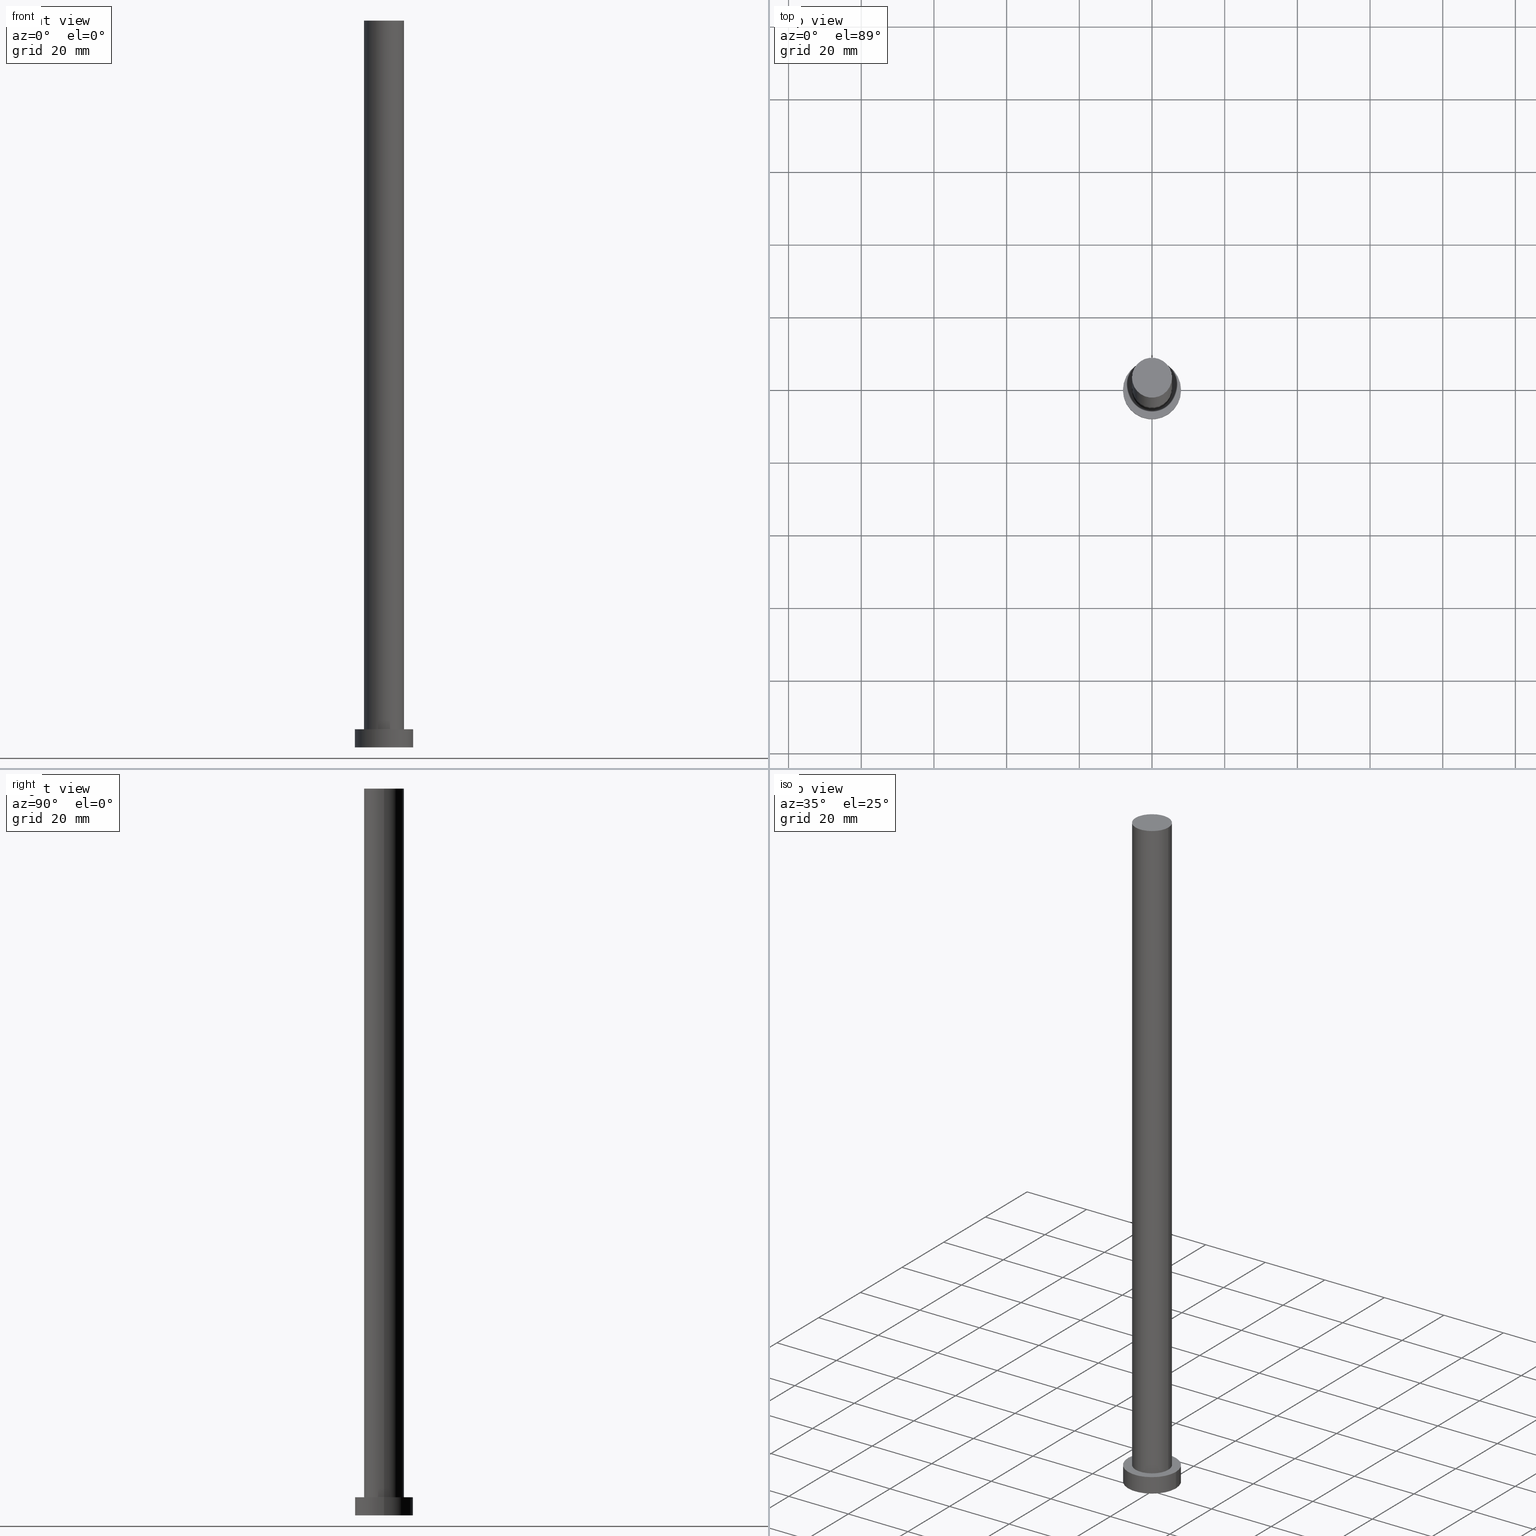
[diagram: canonical four-view strip — front | top / right | iso, engineering-drawing reading convention]
A machine part, canonical four-view strip (front | top / right | iso — engineering-drawing reading convention). The complete STEP part file that produces these views, byte-faithful:
ISO-10303-21;
HEADER;
FILE_DESCRIPTION (( 'STEP AP203' ),
    '1' );
FILE_NAME ('6896.STEP',
    '2023-02-13T11:10:20',
    ( '' ),
    ( '' ),
    'SwSTEP 2.0',
    'SolidWorks 2019',
    '' );
FILE_SCHEMA (( 'CONFIG_CONTROL_DESIGN' ));
ENDSEC;

DATA;
#1 = CARTESIAN_POINT ( 'NONE',  ( -5.500000000000000000, 0.000000000000000000, 200.0000000000000000 ) ) ;
#2 = CARTESIAN_POINT ( 'NONE',  ( -5.500000000000000000, 0.000000000000000000, 200.0000000000000000 ) ) ;
#3 = EDGE_LOOP ( 'NONE', ( #100, #83 ) ) ;
#4 = PERSON_AND_ORGANIZATION ( #145, #84 ) ;
#5 = VERTEX_POINT ( 'NONE', #27 ) ;
#6 = AXIS2_PLACEMENT_3D ( 'NONE', #90, #32, #189 ) ;
#7 = EDGE_LOOP ( 'NONE', ( #25, #179, #118, #79 ) ) ;
#8 = APPROVAL_PERSON_ORGANIZATION ( #180, #195, #45 ) ;
#9 = COORDINATED_UNIVERSAL_TIME_OFFSET ( 1, 0, .AHEAD. ) ;
#10 = DIRECTION ( 'NONE',  ( -0.000000000000000000, -0.000000000000000000, -1.000000000000000000 ) ) ;
#11 = CARTESIAN_POINT ( 'NONE',  ( 0.000000000000000000, 0.000000000000000000, 200.0000000000000000 ) ) ;
#12 = CIRCLE ( 'NONE', #151, 8.000000000000000000 ) ;
#13 = CARTESIAN_POINT ( 'NONE',  ( 0.000000000000000000, 0.000000000000000000, 200.0000000000000000 ) ) ;
#14 = EDGE_CURVE ( 'NONE', #158, #5, #30, .T. ) ;
#15 = FACE_BOUND ( 'NONE', #63, .T. ) ;
#16 = DIRECTION ( 'NONE',  ( -0.000000000000000000, -0.000000000000000000, -1.000000000000000000 ) ) ;
#17 = AXIS2_PLACEMENT_3D ( 'NONE', #94, #76, #239 ) ;
#18 = PERSON_AND_ORGANIZATION ( #145, #84 ) ;
#19 = ADVANCED_BREP_SHAPE_REPRESENTATION ( '6896', ( #173, #197 ), #169 ) ;
#20 = DIRECTION ( 'NONE',  ( 1.000000000000000000, 0.000000000000000000, -0.000000000000000000 ) ) ;
#21 = DIRECTION ( 'NONE',  ( 1.000000000000000000, 0.000000000000000000, 0.000000000000000000 ) ) ;
#22 = EDGE_LOOP ( 'NONE', ( #101, #230, #220, #68 ) ) ;
#23 = PERSON_AND_ORGANIZATION_ROLE ( 'design_supplier' ) ;
#24 = CIRCLE ( 'NONE', #35, 8.000000000000000000 ) ;
#25 = ORIENTED_EDGE ( 'NONE', *, *, #78, .F. ) ;
#26 = LOCAL_TIME ( 12, 10, 20.00000000000000000, #120 ) ;
#27 = CARTESIAN_POINT ( 'NONE',  ( -5.500000000000000000, 0.000000000000000000, 5.000000000000000000 ) ) ;
#28 = FACE_OUTER_BOUND ( 'NONE', #7, .T. ) ;
#29 = DIRECTION ( 'NONE',  ( -0.000000000000000000, -0.000000000000000000, -1.000000000000000000 ) ) ;
#30 = CIRCLE ( 'NONE', #168, 5.500000000000000000 ) ;
#31 = AXIS2_PLACEMENT_3D ( 'NONE', #235, #122, #207 ) ;
#32 = DIRECTION ( 'NONE',  ( 0.000000000000000000, 0.000000000000000000, 1.000000000000000000 ) ) ;
#33 = VERTEX_POINT ( 'NONE', #188 ) ;
#34 = DIRECTION ( 'NONE',  ( 1.000000000000000000, 0.000000000000000000, 0.000000000000000000 ) ) ;
#35 = AXIS2_PLACEMENT_3D ( 'NONE', #208, #86, #141 ) ;
#36 = CC_DESIGN_APPROVAL ( #66, ( #232 ) ) ;
#37 = FACE_OUTER_BOUND ( 'NONE', #69, .T. ) ;
#38 = DIRECTION ( 'NONE',  ( -0.000000000000000000, -0.000000000000000000, -1.000000000000000000 ) ) ;
#39 = EDGE_CURVE ( 'NONE', #225, #242, #183, .T. ) ;
#40 = PLANE ( 'NONE',  #116 ) ;
#41 = COORDINATED_UNIVERSAL_TIME_OFFSET ( 1, 0, .AHEAD. ) ;
#42 = EDGE_LOOP ( 'NONE', ( #209, #137 ) ) ;
#43 = ORIENTED_EDGE ( 'NONE', *, *, #128, .F. ) ;
#44 = SECURITY_CLASSIFICATION ( '', '', #241 ) ;
#45 = APPROVAL_ROLE ( '' ) ;
#46 = CALENDAR_DATE ( 2023, 13, 2 ) ;
#47 = DIRECTION ( 'NONE',  ( -0.000000000000000000, -0.000000000000000000, -1.000000000000000000 ) ) ;
#48 = EDGE_CURVE ( 'NONE', #225, #204, #52, .T. ) ;
#49 = FACE_OUTER_BOUND ( 'NONE', #121, .T. ) ;
#50 = CC_DESIGN_PERSON_AND_ORGANIZATION_ASSIGNMENT ( #157, #219, ( #44 ) ) ;
#51 = DIRECTION ( 'NONE',  ( 0.000000000000000000, 0.000000000000000000, 1.000000000000000000 ) ) ;
#52 = CIRCLE ( 'NONE', #196, 8.000000000000000000 ) ;
#53 = CIRCLE ( 'NONE', #160, 8.000000000000000000 ) ;
#54 = CARTESIAN_POINT ( 'NONE',  ( 5.500000000000000000, 6.735557395310442023E-16, 200.0000000000000000 ) ) ;
#55 = DIRECTION ( 'NONE',  ( 1.000000000000000000, 0.000000000000000000, 0.000000000000000000 ) ) ;
#56 = VECTOR ( 'NONE', #16, 1000.000000000000000 ) ;
#57 = COORDINATED_UNIVERSAL_TIME_OFFSET ( 1, 0, .AHEAD. ) ;
#58 = EDGE_CURVE ( 'NONE', #5, #158, #227, .T. ) ;
#59 = FACE_OUTER_BOUND ( 'NONE', #3, .T. ) ;
#60 = PERSON_AND_ORGANIZATION_ROLE ( 'creator' ) ;
#61 = LOCAL_TIME ( 12, 10, 20.00000000000000000, #103 ) ;
#62 = DATE_TIME_ROLE ( 'creation_date' ) ;
#63 = EDGE_LOOP ( 'NONE', ( #85, #110 ) ) ;
#64 = DATE_AND_TIME ( #138, #26 ) ;
#65 = ORIENTED_EDGE ( 'NONE', *, *, #48, .T. ) ;
#66 = APPROVAL ( #114, 'NEUR�EN�' ) ;
#67 = FACE_OUTER_BOUND ( 'NONE', #42, .T. ) ;
#68 = ORIENTED_EDGE ( 'NONE', *, *, #39, .F. ) ;
#69 = EDGE_LOOP ( 'NONE', ( #229, #43, #107, #135 ) ) ;
#70 = DIRECTION ( 'NONE',  ( 0.000000000000000000, 0.000000000000000000, 1.000000000000000000 ) ) ;
#71 = VECTOR ( 'NONE', #38, 1000.000000000000000 ) ;
#72 = FACE_OUTER_BOUND ( 'NONE', #162, .T. ) ;
#73 =( LENGTH_UNIT ( ) NAMED_UNIT ( * ) SI_UNIT ( .MILLI., .METRE. ) );
#74 = APPLICATION_PROTOCOL_DEFINITION ( 'international standard', 'config_control_design', 1994, #185 ) ;
#75 = CARTESIAN_POINT ( 'NONE',  ( -8.000000000000000000, 0.000000000000000000, 5.000000000000000000 ) ) ;
#76 = DIRECTION ( 'NONE',  ( -0.000000000000000000, -0.000000000000000000, -1.000000000000000000 ) ) ;
#77 = PRODUCT ( '6896', '6896', '', ( #214 ) ) ;
#78 = EDGE_CURVE ( 'NONE', #221, #206, #82, .T. ) ;
#79 = ORIENTED_EDGE ( 'NONE', *, *, #246, .F. ) ;
#80 = SHAPE_DEFINITION_REPRESENTATION ( #98, #19 ) ;
#81 = EDGE_CURVE ( 'NONE', #204, #225, #24, .T. ) ;
#82 = CIRCLE ( 'NONE', #231, 5.500000000000000000 ) ;
#83 = ORIENTED_EDGE ( 'NONE', *, *, #255, .F. ) ;
#84 = ORGANIZATION ( 'NEUR�EN�', 'NEUR�EN�', '' ) ;
#85 = ORIENTED_EDGE ( 'NONE', *, *, #58, .F. ) ;
#86 = DIRECTION ( 'NONE',  ( 0.000000000000000000, 0.000000000000000000, 1.000000000000000000 ) ) ;
#87 = CYLINDRICAL_SURFACE ( 'NONE', #181, 5.500000000000000000 ) ;
#88 = CC_DESIGN_SECURITY_CLASSIFICATION ( #44, ( #234 ) ) ;
#89 = PLANE ( 'NONE',  #6 ) ;
#90 = CARTESIAN_POINT ( 'NONE',  ( 0.000000000000000000, 0.000000000000000000, 200.0000000000000000 ) ) ;
#91 = CARTESIAN_POINT ( 'NONE',  ( 0.000000000000000000, 0.000000000000000000, 5.000000000000000000 ) ) ;
#92 = PERSON_AND_ORGANIZATION_ROLE ( 'design_owner' ) ;
#93 = EDGE_CURVE ( 'NONE', #204, #33, #210, .T. ) ;
#94 = CARTESIAN_POINT ( 'NONE',  ( 0.000000000000000000, 0.000000000000000000, 200.0000000000000000 ) ) ;
#95 = DIRECTION ( 'NONE',  ( 0.000000000000000000, 0.000000000000000000, 1.000000000000000000 ) ) ;
#96 = CC_DESIGN_DATE_AND_TIME_ASSIGNMENT ( #117, #62, ( #232 ) ) ;
#97 = CARTESIAN_POINT ( 'NONE',  ( 0.000000000000000000, 0.000000000000000000, 0.000000000000000000 ) ) ;
#98 = PRODUCT_DEFINITION_SHAPE ( 'NONE', 'NONE',  #232 ) ;
#99 = DATE_AND_TIME ( #46, #61 ) ;
#100 = ORIENTED_EDGE ( 'NONE', *, *, #190, .F. ) ;
#101 = ORIENTED_EDGE ( 'NONE', *, *, #81, .F. ) ;
#102 = VECTOR ( 'NONE', #10, 1000.000000000000000 ) ;
#103 = COORDINATED_UNIVERSAL_TIME_OFFSET ( 1, 0, .AHEAD. ) ;
#104 = CC_DESIGN_APPROVAL ( #182, ( #234 ) ) ;
#105 = PLANE ( 'NONE',  #174 ) ;
#106 = ADVANCED_FACE ( 'NONE', ( #67 ), #89, .T. ) ;
#107 = ORIENTED_EDGE ( 'NONE', *, *, #246, .T. ) ;
#108 = CC_DESIGN_PERSON_AND_ORGANIZATION_ASSIGNMENT ( #167, #60, ( #232 ) ) ;
#109 = DIRECTION ( 'NONE',  ( 1.000000000000000000, 0.000000000000000000, 0.000000000000000000 ) ) ;
#110 = ORIENTED_EDGE ( 'NONE', *, *, #14, .F. ) ;
#111 = ADVANCED_FACE ( 'NONE', ( #15, #49 ), #105, .T. ) ;
#112 = DIRECTION ( 'NONE',  ( 0.000000000000000000, 0.000000000000000000, 1.000000000000000000 ) ) ;
#113 = LINE ( 'NONE', #2, #71 ) ;
#114 = APPROVAL_STATUS ( 'not_yet_approved' ) ;
#115 = CARTESIAN_POINT ( 'NONE',  ( 0.000000000000000000, 0.000000000000000000, 0.000000000000000000 ) ) ;
#116 = AXIS2_PLACEMENT_3D ( 'NONE', #171, #216, #20 ) ;
#117 = DATE_AND_TIME ( #148, #218 ) ;
#118 = ORIENTED_EDGE ( 'NONE', *, *, #14, .T. ) ;
#119 = ORIENTED_EDGE ( 'NONE', *, *, #81, .T. ) ;
#120 = COORDINATED_UNIVERSAL_TIME_OFFSET ( 1, 0, .AHEAD. ) ;
#121 = EDGE_LOOP ( 'NONE', ( #65, #119 ) ) ;
#122 = DIRECTION ( 'NONE',  ( -0.000000000000000000, -0.000000000000000000, -1.000000000000000000 ) ) ;
#123 = DIRECTION ( 'NONE',  ( 1.000000000000000000, 0.000000000000000000, 0.000000000000000000 ) ) ;
#124 = CARTESIAN_POINT ( 'NONE',  ( 0.000000000000000000, 0.000000000000000000, 200.0000000000000000 ) ) ;
#125 = DIRECTION ( 'NONE',  ( 1.000000000000000000, 0.000000000000000000, 0.000000000000000000 ) ) ;
#126 = FACE_OUTER_BOUND ( 'NONE', #22, .T. ) ;
#127 = CARTESIAN_POINT ( 'NONE',  ( 5.500000000000000000, 6.735557395310442023E-16, 200.0000000000000000 ) ) ;
#128 = EDGE_CURVE ( 'NONE', #206, #221, #251, .T. ) ;
#129 = CC_DESIGN_PERSON_AND_ORGANIZATION_ASSIGNMENT ( #4, #23, ( #234 ) ) ;
#130 = CARTESIAN_POINT ( 'NONE',  ( 5.500000000000000000, 6.735557395310442023E-16, 5.000000000000000000 ) ) ;
#131 = ADVANCED_FACE ( 'NONE', ( #72 ), #228, .T. ) ;
#132 = AXIS2_PLACEMENT_3D ( 'NONE', #124, #70, #146 ) ;
#133 = APPROVAL_STATUS ( 'not_yet_approved' ) ;
#134 = APPROVAL_ROLE ( '' ) ;
#135 = ORIENTED_EDGE ( 'NONE', *, *, #58, .T. ) ;
#136 = APPROVAL_STATUS ( 'not_yet_approved' ) ;
#137 = ORIENTED_EDGE ( 'NONE', *, *, #78, .T. ) ;
#138 = CALENDAR_DATE ( 2023, 13, 2 ) ;
#139 = CALENDAR_DATE ( 2023, 13, 2 ) ;
#140 = ADVANCED_FACE ( 'NONE', ( #28 ), #87, .T. ) ;
#141 = DIRECTION ( 'NONE',  ( 1.000000000000000000, 0.000000000000000000, 0.000000000000000000 ) ) ;
#142 = DIRECTION ( 'NONE',  ( 0.000000000000000000, 0.000000000000000000, 1.000000000000000000 ) ) ;
#143 = EDGE_CURVE ( 'NONE', #221, #158, #233, .T. ) ;
#144 = CARTESIAN_POINT ( 'NONE',  ( -8.000000000000000000, 0.000000000000000000, 5.000000000000000000 ) ) ;
#145 = PERSON ( 'NEUR�EN�', 'NEUR�EN�', 'NEUR�EN�', ('NEUR�EN�'), ('NEUR�EN�'), ('NEUR�EN�') ) ;
#146 = DIRECTION ( 'NONE',  ( 1.000000000000000000, 0.000000000000000000, 0.000000000000000000 ) ) ;
#147 = CARTESIAN_POINT ( 'NONE',  ( 0.000000000000000000, 0.000000000000000000, 5.000000000000000000 ) ) ;
#148 = CALENDAR_DATE ( 2023, 13, 2 ) ;
#149 = ADVANCED_FACE ( 'NONE', ( #126 ), #211, .T. ) ;
#150 = CARTESIAN_POINT ( 'NONE',  ( 8.000000000000000000, 9.797174393178825657E-16, 5.000000000000000000 ) ) ;
#151 = AXIS2_PLACEMENT_3D ( 'NONE', #115, #215, #34 ) ;
#152 = CARTESIAN_POINT ( 'NONE',  ( -8.000000000000000000, 0.000000000000000000, 0.000000000000000000 ) ) ;
#153 = ADVANCED_FACE ( 'NONE', ( #37 ), #191, .T. ) ;
#154 = CALENDAR_DATE ( 2023, 13, 2 ) ;
#155 = APPROVAL_PERSON_ORGANIZATION ( #254, #66, #170 ) ;
#156 = PERSON_AND_ORGANIZATION ( #145, #84 ) ;
#157 = PERSON_AND_ORGANIZATION ( #145, #84 ) ;
#158 = VERTEX_POINT ( 'NONE', #130 ) ;
#159 = VECTOR ( 'NONE', #29, 1000.000000000000000 ) ;
#160 = AXIS2_PLACEMENT_3D ( 'NONE', #236, #95, #55 ) ;
#161 = ORIENTED_EDGE ( 'NONE', *, *, #93, .F. ) ;
#162 = EDGE_LOOP ( 'NONE', ( #161, #177, #226, #244 ) ) ;
#163 = DIRECTION ( 'NONE',  ( -1.000000000000000000, 0.000000000000000000, 0.000000000000000000 ) ) ;
#164 = DIRECTION ( 'NONE',  ( -0.000000000000000000, -0.000000000000000000, -1.000000000000000000 ) ) ;
#165 = CARTESIAN_POINT ( 'NONE',  ( 0.000000000000000000, 0.000000000000000000, 5.000000000000000000 ) ) ;
#166 = DIRECTION ( 'NONE',  ( 1.000000000000000000, 0.000000000000000000, 0.000000000000000000 ) ) ;
#167 = PERSON_AND_ORGANIZATION ( #145, #84 ) ;
#168 = AXIS2_PLACEMENT_3D ( 'NONE', #165, #142, #123 ) ;
#169 =( GEOMETRIC_REPRESENTATION_CONTEXT ( 3 ) GLOBAL_UNCERTAINTY_ASSIGNED_CONTEXT ( ( #245 ) ) GLOBAL_UNIT_ASSIGNED_CONTEXT ( ( #73, #194, #192 ) ) REPRESENTATION_CONTEXT ( 'NONE', 'WORKASPACE' ) );
#170 = APPROVAL_ROLE ( '' ) ;
#171 = CARTESIAN_POINT ( 'NONE',  ( 0.000000000000000000, 0.000000000000000000, 0.000000000000000000 ) ) ;
#172 = APPROVAL_DATE_TIME ( #99, #182 ) ;
#173 = MANIFOLD_SOLID_BREP ( 'P�idat vysunut�m3', #217 ) ;
#174 = AXIS2_PLACEMENT_3D ( 'NONE', #252, #112, #250 ) ;
#175 = APPROVAL_PERSON_ORGANIZATION ( #156, #182, #134 ) ;
#176 = CC_DESIGN_PERSON_AND_ORGANIZATION_ASSIGNMENT ( #18, #92, ( #77 ) ) ;
#177 = ORIENTED_EDGE ( 'NONE', *, *, #48, .F. ) ;
#178 = CC_DESIGN_PERSON_AND_ORGANIZATION_ASSIGNMENT ( #203, #205, ( #234 ) ) ;
#179 = ORIENTED_EDGE ( 'NONE', *, *, #143, .T. ) ;
#180 = PERSON_AND_ORGANIZATION ( #145, #84 ) ;
#181 = AXIS2_PLACEMENT_3D ( 'NONE', #11, #164, #249 ) ;
#182 = APPROVAL ( #133, 'NEUR�EN�' ) ;
#183 = LINE ( 'NONE', #144, #159 ) ;
#184 = DIRECTION ( 'NONE',  ( 0.000000000000000000, 0.000000000000000000, 1.000000000000000000 ) ) ;
#185 = APPLICATION_CONTEXT ( 'configuration controlled 3d designs of mechanical parts and assemblies' ) ;
#186 = CARTESIAN_POINT ( 'NONE',  ( 0.000000000000000000, 0.000000000000000000, 5.000000000000000000 ) ) ;
#187 = LOCAL_TIME ( 12, 10, 20.00000000000000000, #9 ) ;
#188 = CARTESIAN_POINT ( 'NONE',  ( 8.000000000000000000, 9.797174393178825657E-16, 0.000000000000000000 ) ) ;
#189 = DIRECTION ( 'NONE',  ( 1.000000000000000000, 0.000000000000000000, -0.000000000000000000 ) ) ;
#190 = EDGE_CURVE ( 'NONE', #242, #33, #53, .T. ) ;
#191 = CYLINDRICAL_SURFACE ( 'NONE', #17, 5.500000000000000000 ) ;
#192 =( NAMED_UNIT ( * ) SI_UNIT ( $, .STERADIAN. ) SOLID_ANGLE_UNIT ( ) );
#193 = DATE_AND_TIME ( #154, #202 ) ;
#194 =( NAMED_UNIT ( * ) PLANE_ANGLE_UNIT ( ) SI_UNIT ( $, .RADIAN. ) );
#195 = APPROVAL ( #136, 'NEUR�EN�' ) ;
#196 = AXIS2_PLACEMENT_3D ( 'NONE', #186, #184, #109 ) ;
#197 = AXIS2_PLACEMENT_3D ( 'NONE', #97, #238, #21 ) ;
#198 = APPLICATION_PROTOCOL_DEFINITION ( 'international standard', 'config_control_design', 1994, #199 ) ;
#199 = APPLICATION_CONTEXT ( 'configuration controlled 3d designs of mechanical parts and assemblies' ) ;
#200 = ADVANCED_FACE ( 'NONE', ( #59 ), #40, .F. ) ;
#201 = APPROVAL_DATE_TIME ( #243, #195 ) ;
#202 = LOCAL_TIME ( 12, 10, 20.00000000000000000, #57 ) ;
#203 = PERSON_AND_ORGANIZATION ( #145, #84 ) ;
#204 = VERTEX_POINT ( 'NONE', #150 ) ;
#205 = PERSON_AND_ORGANIZATION_ROLE ( 'creator' ) ;
#206 = VERTEX_POINT ( 'NONE', #1 ) ;
#207 = DIRECTION ( 'NONE',  ( -1.000000000000000000, 0.000000000000000000, 0.000000000000000000 ) ) ;
#208 = CARTESIAN_POINT ( 'NONE',  ( 0.000000000000000000, 0.000000000000000000, 5.000000000000000000 ) ) ;
#209 = ORIENTED_EDGE ( 'NONE', *, *, #128, .T. ) ;
#210 = LINE ( 'NONE', #248, #102 ) ;
#211 = CYLINDRICAL_SURFACE ( 'NONE', #31, 8.000000000000000000 ) ;
#212 = CC_DESIGN_DATE_AND_TIME_ASSIGNMENT ( #64, #222, ( #44 ) ) ;
#213 = AXIS2_PLACEMENT_3D ( 'NONE', #147, #47, #163 ) ;
#214 = MECHANICAL_CONTEXT ( 'NONE', #185, 'mechanical' ) ;
#215 = DIRECTION ( 'NONE',  ( 0.000000000000000000, 0.000000000000000000, 1.000000000000000000 ) ) ;
#216 = DIRECTION ( 'NONE',  ( 0.000000000000000000, 0.000000000000000000, 1.000000000000000000 ) ) ;
#217 = CLOSED_SHELL ( 'NONE', ( #140, #149, #131, #111, #200, #153, #106 ) ) ;
#218 = LOCAL_TIME ( 12, 10, 20.00000000000000000, #41 ) ;
#219 = PERSON_AND_ORGANIZATION_ROLE ( 'classification_officer' ) ;
#220 = ORIENTED_EDGE ( 'NONE', *, *, #255, .T. ) ;
#221 = VERTEX_POINT ( 'NONE', #127 ) ;
#222 = DATE_TIME_ROLE ( 'classification_date' ) ;
#223 = PRODUCT_RELATED_PRODUCT_CATEGORY ( 'detail', '', ( #77 ) ) ;
#224 = DESIGN_CONTEXT ( 'detailed design', #199, 'design' ) ;
#225 = VERTEX_POINT ( 'NONE', #75 ) ;
#226 = ORIENTED_EDGE ( 'NONE', *, *, #39, .T. ) ;
#227 = CIRCLE ( 'NONE', #237, 5.500000000000000000 ) ;
#228 = CYLINDRICAL_SURFACE ( 'NONE', #213, 8.000000000000000000 ) ;
#229 = ORIENTED_EDGE ( 'NONE', *, *, #143, .F. ) ;
#230 = ORIENTED_EDGE ( 'NONE', *, *, #93, .T. ) ;
#231 = AXIS2_PLACEMENT_3D ( 'NONE', #13, #247, #125 ) ;
#232 = PRODUCT_DEFINITION ( 'NEZN�M�', '', #234, #224 ) ;
#233 = LINE ( 'NONE', #54, #56 ) ;
#234 = PRODUCT_DEFINITION_FORMATION_WITH_SPECIFIED_SOURCE ( 'LIBOVOLN�', '', #77, .NOT_KNOWN. ) ;
#235 = CARTESIAN_POINT ( 'NONE',  ( 0.000000000000000000, 0.000000000000000000, 5.000000000000000000 ) ) ;
#236 = CARTESIAN_POINT ( 'NONE',  ( 0.000000000000000000, 0.000000000000000000, 0.000000000000000000 ) ) ;
#237 = AXIS2_PLACEMENT_3D ( 'NONE', #91, #51, #166 ) ;
#238 = DIRECTION ( 'NONE',  ( 0.000000000000000000, 0.000000000000000000, 1.000000000000000000 ) ) ;
#239 = DIRECTION ( 'NONE',  ( -1.000000000000000000, 0.000000000000000000, 0.000000000000000000 ) ) ;
#240 = APPROVAL_DATE_TIME ( #193, #66 ) ;
#241 = SECURITY_CLASSIFICATION_LEVEL ( 'unclassified' ) ;
#242 = VERTEX_POINT ( 'NONE', #152 ) ;
#243 = DATE_AND_TIME ( #139, #187 ) ;
#244 = ORIENTED_EDGE ( 'NONE', *, *, #190, .T. ) ;
#245 = UNCERTAINTY_MEASURE_WITH_UNIT (LENGTH_MEASURE( 1.000000000000000082E-05 ), #73, 'distance_accuracy_value', 'NONE');
#246 = EDGE_CURVE ( 'NONE', #206, #5, #113, .T. ) ;
#247 = DIRECTION ( 'NONE',  ( 0.000000000000000000, 0.000000000000000000, 1.000000000000000000 ) ) ;
#248 = CARTESIAN_POINT ( 'NONE',  ( 8.000000000000000000, 9.797174393178825657E-16, 5.000000000000000000 ) ) ;
#249 = DIRECTION ( 'NONE',  ( -1.000000000000000000, 0.000000000000000000, 0.000000000000000000 ) ) ;
#250 = DIRECTION ( 'NONE',  ( 1.000000000000000000, 0.000000000000000000, -0.000000000000000000 ) ) ;
#251 = CIRCLE ( 'NONE', #132, 5.500000000000000000 ) ;
#252 = CARTESIAN_POINT ( 'NONE',  ( 0.000000000000000000, 0.000000000000000000, 5.000000000000000000 ) ) ;
#253 = CC_DESIGN_APPROVAL ( #195, ( #44 ) ) ;
#254 = PERSON_AND_ORGANIZATION ( #145, #84 ) ;
#255 = EDGE_CURVE ( 'NONE', #33, #242, #12, .T. ) ;
ENDSEC;
END-ISO-10303-21;
